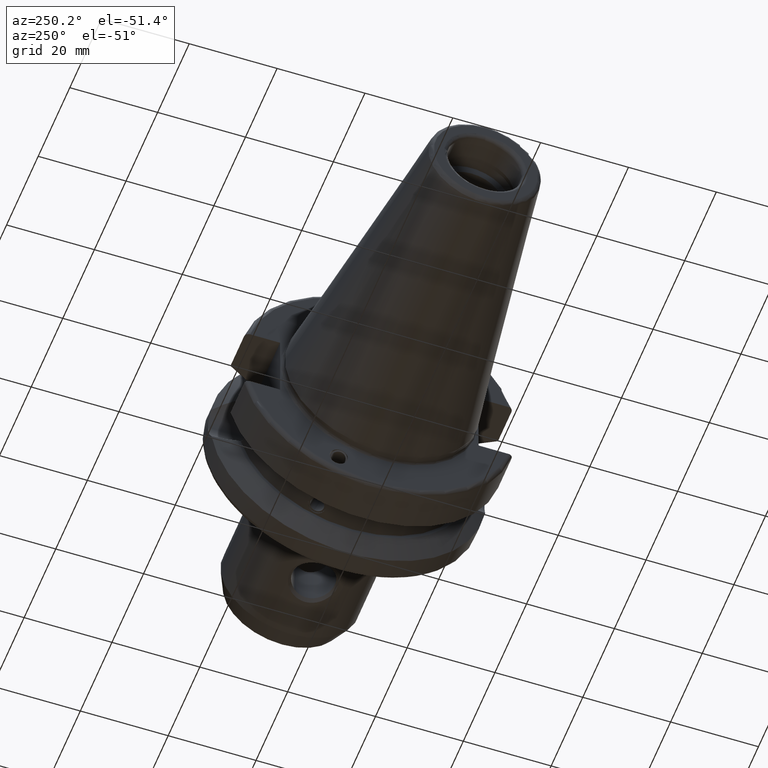
[diagram: clean part render]
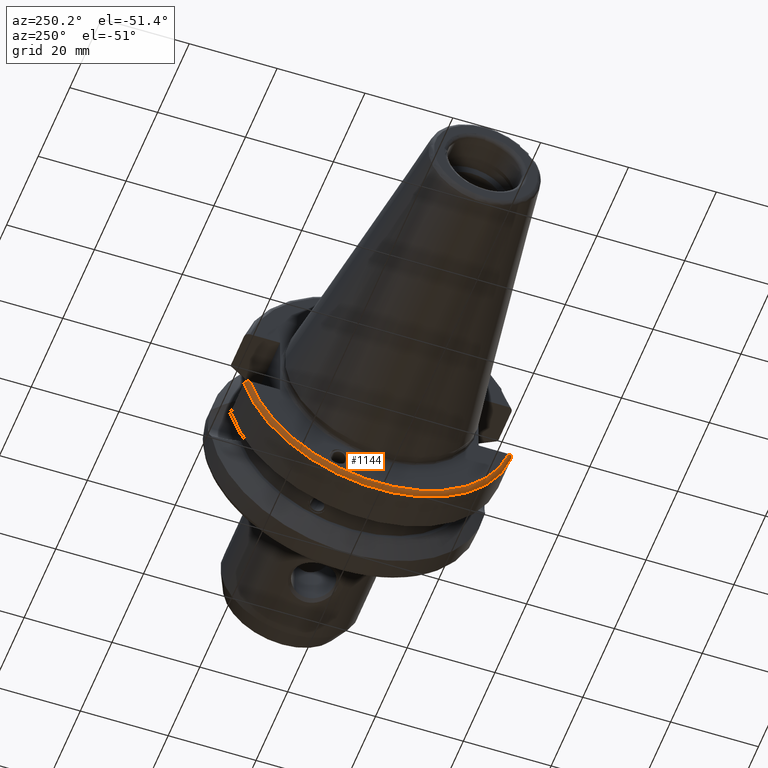
[diagram: same view with one face highlighted and labeled with its STEP entity id]
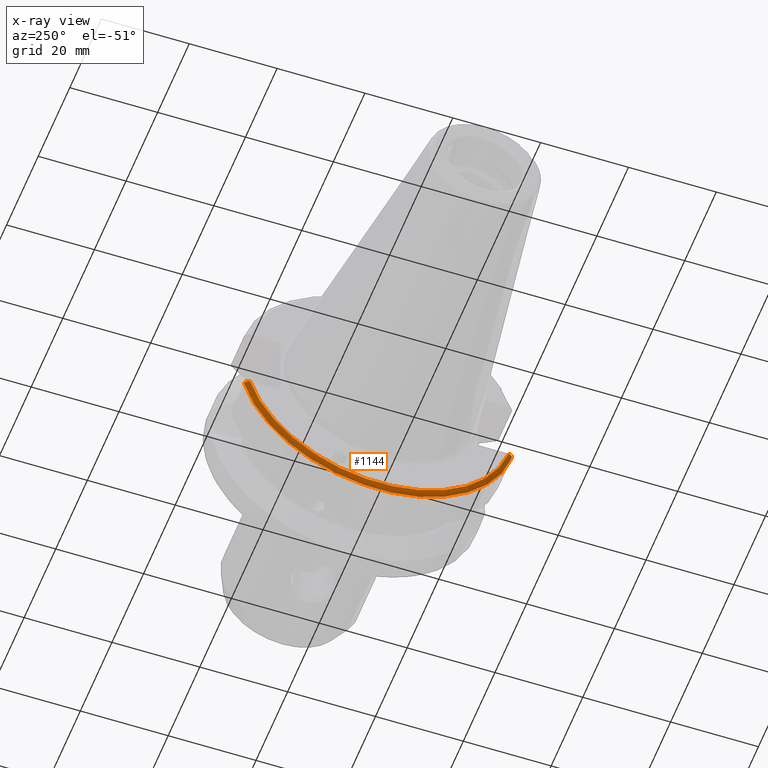
[diagram: x-ray of the same camera — body ghosted, the highlighted face saturated]
A machine part, auxiliary view. The second image highlights one B-rep face of the part: STEP entity #1144.
The next image is the same camera in x-ray: the body ghosted, the highlighted face saturated — about 0% of this face is hidden behind the body in this view.
In plain terms, the highlighted toroidal blend (fillet) surface has major radius 30.5 mm and minor (blend) radius 1 mm.
Its self-contained STEP definition (entity closure, byte-faithful):
#69=TOROIDAL_SURFACE('',#1285,30.5,1.00000000000001);
#126=CIRCLE('',#1284,31.5);
#127=CIRCLE('',#1286,30.5);
#222=FACE_OUTER_BOUND('',#299,.T.);
#299=EDGE_LOOP('',(#974,#975,#976,#977));
#349=B_SPLINE_CURVE_WITH_KNOTS('',3,(#2265,#2266,#2267,#2268,#2269,#2270,
#2271,#2272,#2273,#2274),.UNSPECIFIED.,.F.,.F.,(4,2,2,2,4),(0.,0.0366169489027566,
0.0738743445372396,0.111946181815504,0.150751871388631),.UNSPECIFIED.);
#353=B_SPLINE_CURVE_WITH_KNOTS('',3,(#2345,#2346,#2347,#2348,#2349,#2350,
#2351,#2352,#2353,#2354),.UNSPECIFIED.,.F.,.F.,(4,2,2,2,4),(-0.150751871388631,
-0.111946181815504,-0.0738743445372396,-0.0366169489027566,0.),
 .UNSPECIFIED.);
#547=VERTEX_POINT('',#2262);
#548=VERTEX_POINT('',#2264);
#561=VERTEX_POINT('',#2339);
#562=VERTEX_POINT('',#2343);
#687=EDGE_CURVE('',#548,#547,#349,.T.);
#709=EDGE_CURVE('',#548,#561,#126,.T.);
#711=EDGE_CURVE('',#547,#562,#127,.T.);
#712=EDGE_CURVE('',#562,#561,#353,.T.);
#974=ORIENTED_EDGE('',*,*,#687,.T.);
#975=ORIENTED_EDGE('',*,*,#711,.T.);
#976=ORIENTED_EDGE('',*,*,#712,.T.);
#977=ORIENTED_EDGE('',*,*,#709,.F.);
#1144=ADVANCED_FACE('',(#222),#69,.T.);
#1284=AXIS2_PLACEMENT_3D('',#2340,#1565,#1566);
#1285=AXIS2_PLACEMENT_3D('',#2342,#1568,#1569);
#1286=AXIS2_PLACEMENT_3D('',#2344,#1570,#1571);
#1565=DIRECTION('center_axis',(1.,0.,0.));
#1566=DIRECTION('ref_axis',(0.,0.,-1.));
#1568=DIRECTION('center_axis',(1.,0.,0.));
#1569=DIRECTION('ref_axis',(0.,0.,-1.));
#1570=DIRECTION('center_axis',(1.,0.,0.));
#1571=DIRECTION('ref_axis',(0.,0.,-1.));
#2262=CARTESIAN_POINT('',(1.99999999999999,-29.4184890842477,-8.05));
#2264=CARTESIAN_POINT('',(2.99999999999999,-30.4540227227866,-8.05));
#2265=CARTESIAN_POINT('Ctrl Pts',(3.,-30.4540227227866,-8.05));
#2266=CARTESIAN_POINT('Ctrl Pts',(2.87794350365748,-30.4540227227866,-8.05));
#2267=CARTESIAN_POINT('Ctrl Pts',(2.73442803339431,-30.4247631098996,-8.05));
#2268=CARTESIAN_POINT('Ctrl Pts',(2.50758665841081,-30.3289456947341,-8.05));
#2269=CARTESIAN_POINT('Ctrl Pts',(2.38465986426588,-30.2446912007727,-8.05));
#2270=CARTESIAN_POINT('Ctrl Pts',(2.2089547883793,-30.0653098968133,-8.05));
#2271=CARTESIAN_POINT('Ctrl Pts',(2.12587454939785,-29.9376810968085,-8.05));
#2272=CARTESIAN_POINT('Ctrl Pts',(2.02950258743517,-29.7002346307938,-8.05));
#2273=CARTESIAN_POINT('Ctrl Pts',(1.99999999999999,-29.5478413828248,-8.05));
#2274=CARTESIAN_POINT('Ctrl Pts',(1.99999999999999,-29.4184890842477,-8.05));
#2339=CARTESIAN_POINT('',(2.99999999999999,30.4540227227866,-8.05));
#2340=CARTESIAN_POINT('Origin',(2.99999999999999,0.,0.));
#2342=CARTESIAN_POINT('Origin',(3.,0.,0.));
#2343=CARTESIAN_POINT('',(1.99999999999999,29.4184890842477,-8.05));
#2344=CARTESIAN_POINT('Origin',(1.99999999999999,0.,0.));
#2345=CARTESIAN_POINT('Ctrl Pts',(1.99999999999999,29.4184890842477,-8.05));
#2346=CARTESIAN_POINT('Ctrl Pts',(1.99999999999999,29.5478413828248,-8.05));
#2347=CARTESIAN_POINT('Ctrl Pts',(2.02950258743517,29.7002346307938,-8.05));
#2348=CARTESIAN_POINT('Ctrl Pts',(2.12587454939785,29.9376810968085,-8.05));
#2349=CARTESIAN_POINT('Ctrl Pts',(2.2089547883793,30.0653098968133,-8.05));
#2350=CARTESIAN_POINT('Ctrl Pts',(2.38465986426588,30.2446912007727,-8.05));
#2351=CARTESIAN_POINT('Ctrl Pts',(2.50758665841081,30.3289456947341,-8.05));
#2352=CARTESIAN_POINT('Ctrl Pts',(2.73442803339431,30.4247631098996,-8.05));
#2353=CARTESIAN_POINT('Ctrl Pts',(2.87794350365748,30.4540227227866,-8.05));
#2354=CARTESIAN_POINT('Ctrl Pts',(3.,30.4540227227866,-8.05));